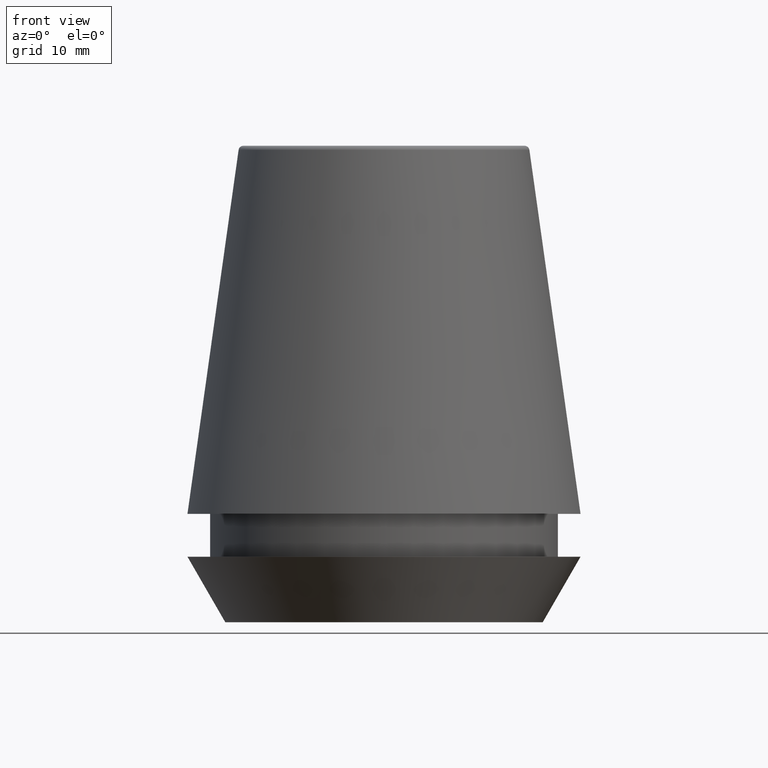
[diagram: clean part render]
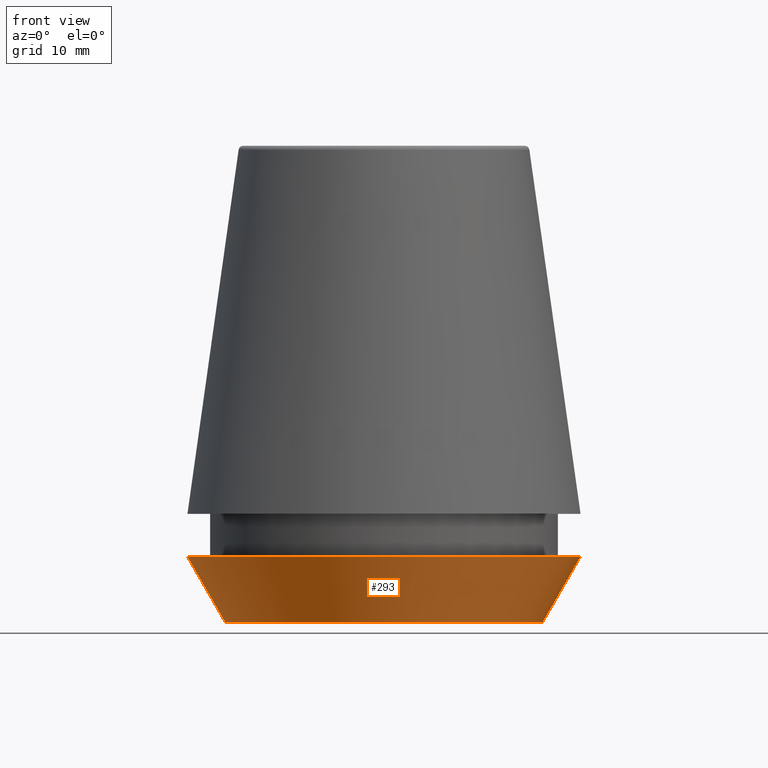
[diagram: same view with one face highlighted and labeled with its STEP entity id]
A machine part, front view. The second image highlights one B-rep face of the part: STEP entity #293.
In plain terms, the highlighted conical surface has half-angle 30 deg.
Its self-contained STEP definition (entity closure, byte-faithful):
#1 = CARTESIAN_POINT ( 'NONE',  ( 0.0000000000000000000, 0.0000000000000000000, 5.500000000000005300 ) ) ;
#2 = DIRECTION ( 'NONE',  ( 1.000000000000000000, 0.0000000000000000000, 0.0000000000000000000 ) ) ;
#5 = VERTEX_POINT ( 'NONE', #352 ) ;
#15 = DIRECTION ( 'NONE',  ( -0.4999999999999947300, 6.123233995736700700E-017, 0.8660254037844418200 ) ) ;
#20 = CIRCLE ( 'NONE', #76, 13.32457351945710200 ) ;
#26 = ORIENTED_EDGE ( 'NONE', *, *, #377, .F. ) ;
#38 = AXIS2_PLACEMENT_3D ( 'NONE', #340, #78, #133 ) ;
#60 = EDGE_CURVE ( 'NONE', #5, #215, #281, .T. ) ;
#61 = FACE_OUTER_BOUND ( 'NONE', #295, .T. ) ;
#66 = EDGE_CURVE ( 'NONE', #140, #245, #229, .T. ) ;
#68 = CARTESIAN_POINT ( 'NONE',  ( 16.50000000000000000, 0.0000000000000000000, 5.500000000000005300 ) ) ;
#76 = AXIS2_PLACEMENT_3D ( 'NONE', #363, #299, #2 ) ;
#78 = DIRECTION ( 'NONE',  ( -0.0000000000000000000, -0.0000000000000000000, 1.000000000000000000 ) ) ;
#85 = VECTOR ( 'NONE', #15, 999.9999999999998900 ) ;
#86 = ORIENTED_EDGE ( 'NONE', *, *, #197, .T. ) ;
#122 = AXIS2_PLACEMENT_3D ( 'NONE', #1, #262, #296 ) ;
#129 = CARTESIAN_POINT ( 'NONE',  ( -16.50000000000000000, 2.020667218593133100E-015, 5.500000000000005300 ) ) ;
#133 = DIRECTION ( 'NONE',  ( 1.000000000000000000, 0.0000000000000000000, 0.0000000000000000000 ) ) ;
#140 = VERTEX_POINT ( 'NONE', #333 ) ;
#153 = CIRCLE ( 'NONE', #122, 16.50000000000000000 ) ;
#189 = VECTOR ( 'NONE', #324, 999.9999999999998900 ) ;
#197 = EDGE_CURVE ( 'NONE', #140, #5, #20, .T. ) ;
#215 = VERTEX_POINT ( 'NONE', #68 ) ;
#229 = LINE ( 'NONE', #310, #85 ) ;
#245 = VERTEX_POINT ( 'NONE', #129 ) ;
#248 = CONICAL_SURFACE ( 'NONE', #38, 13.32457351945710200, 0.5235987755982927100 ) ;
#258 = ORIENTED_EDGE ( 'NONE', *, *, #60, .T. ) ;
#262 = DIRECTION ( 'NONE',  ( -0.0000000000000000000, -0.0000000000000000000, 1.000000000000000000 ) ) ;
#279 = CARTESIAN_POINT ( 'NONE',  ( 13.32457351945710200, 0.0000000000000000000, 0.0000000000000000000 ) ) ;
#281 = LINE ( 'NONE', #279, #189 ) ;
#293 = ADVANCED_FACE ( 'NONE', ( #61 ), #248, .T. ) ;
#295 = EDGE_LOOP ( 'NONE', ( #351, #86, #258, #26 ) ) ;
#296 = DIRECTION ( 'NONE',  ( 1.000000000000000000, 0.0000000000000000000, 0.0000000000000000000 ) ) ;
#299 = DIRECTION ( 'NONE',  ( -0.0000000000000000000, -0.0000000000000000000, 1.000000000000000000 ) ) ;
#310 = CARTESIAN_POINT ( 'NONE',  ( -13.32457351945710200, 1.631789631060672300E-015, 0.0000000000000000000 ) ) ;
#324 = DIRECTION ( 'NONE',  ( 0.4999999999999947300, 0.0000000000000000000, 0.8660254037844418200 ) ) ;
#333 = CARTESIAN_POINT ( 'NONE',  ( -13.32457351945710200, 1.826228424826902600E-015, 0.0000000000000000000 ) ) ;
#340 = CARTESIAN_POINT ( 'NONE',  ( 0.0000000000000000000, 0.0000000000000000000, 0.0000000000000000000 ) ) ;
#351 = ORIENTED_EDGE ( 'NONE', *, *, #66, .F. ) ;
#352 = CARTESIAN_POINT ( 'NONE',  ( 13.32457351945710200, 0.0000000000000000000, 0.0000000000000000000 ) ) ;
#363 = CARTESIAN_POINT ( 'NONE',  ( 0.0000000000000000000, 0.0000000000000000000, 0.0000000000000000000 ) ) ;
#377 = EDGE_CURVE ( 'NONE', #245, #215, #153, .T. ) ;